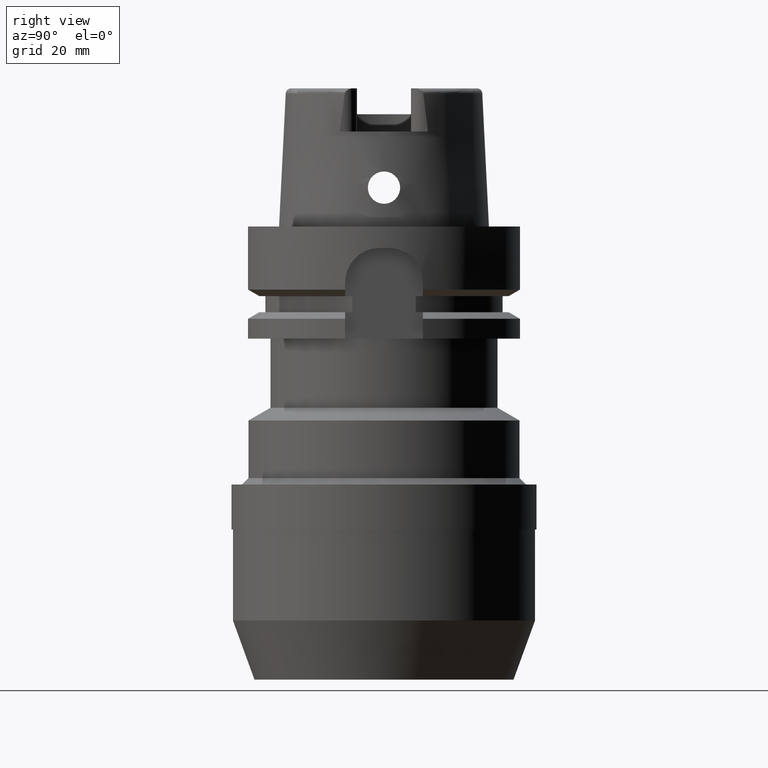
[diagram: clean part render]
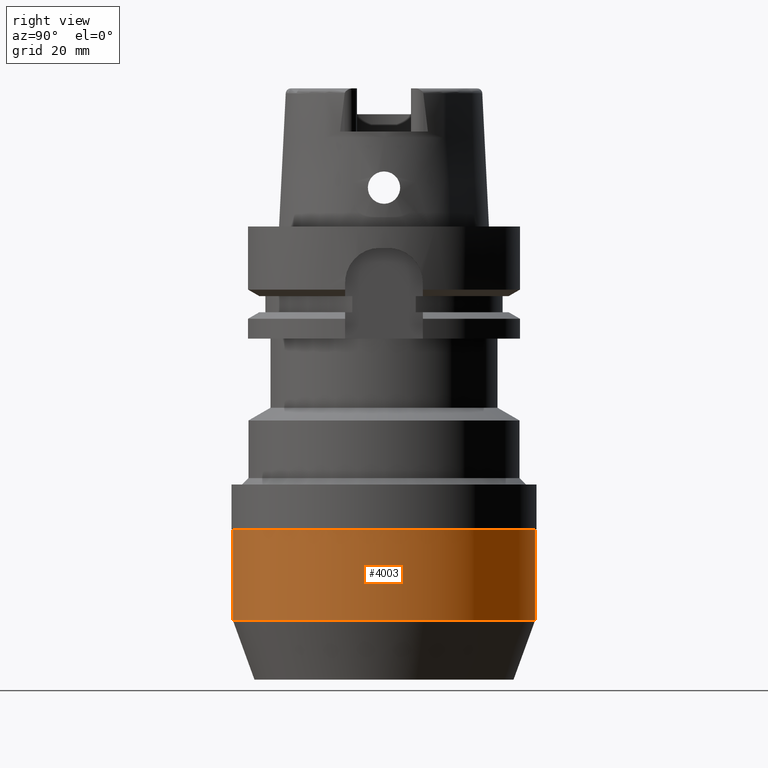
[diagram: same view with one face highlighted and labeled with its STEP entity id]
A machine part, right view. The second image highlights one B-rep face of the part: STEP entity #4003.
In plain terms, the highlighted cylindrical surface (partial cylindrical patch) has radius 35 mm, axis along (0, 0, -1).
Its self-contained STEP definition (entity closure, byte-faithful):
#1810=CARTESIAN_POINT('',(0.E0,0.E0,-7.02E1));
#1811=DIRECTION('',(0.E0,0.E0,-1.E0));
#1812=DIRECTION('',(0.E0,1.E0,0.E0));
#1813=AXIS2_PLACEMENT_3D('',#1810,#1811,#1812);
#1818=DIRECTION('',(0.E0,-7.408502458162E-14,-1.E0));
#1819=VECTOR('',#1818,2.11E1);
#1820=CARTESIAN_POINT('',(0.E0,-3.5E1,-7.02E1));
#1821=LINE('',#1820,#1819);
#1825=DIRECTION('',(0.E0,7.341152435815E-14,-1.E0));
#1826=VECTOR('',#1825,2.11E1);
#1827=CARTESIAN_POINT('',(0.E0,3.5E1,-7.02E1));
#1828=LINE('',#1827,#1826);
#1839=CARTESIAN_POINT('',(0.E0,-1.201990833363E-14,-9.13E1));
#1840=DIRECTION('',(0.E0,0.E0,1.E0));
#1841=DIRECTION('',(0.E0,-1.E0,0.E0));
#1842=AXIS2_PLACEMENT_3D('',#1839,#1840,#1841);
#2548=CARTESIAN_POINT('',(0.E0,3.5E1,-9.13E1));
#2549=VERTEX_POINT('',#2548);
#2550=CARTESIAN_POINT('',(0.E0,-3.5E1,-9.13E1));
#2551=VERTEX_POINT('',#2550);
#2552=CARTESIAN_POINT('',(0.E0,3.5E1,-7.02E1));
#2553=VERTEX_POINT('',#2552);
#2554=CARTESIAN_POINT('',(0.E0,-3.5E1,-7.02E1));
#2555=VERTEX_POINT('',#2554);
#3991=CARTESIAN_POINT('',(0.E0,0.E0,3.885E1));
#3992=DIRECTION('',(0.E0,0.E0,-1.E0));
#3993=DIRECTION('',(0.E0,-1.E0,0.E0));
#3994=AXIS2_PLACEMENT_3D('',#3991,#3992,#3993);
#3995=CYLINDRICAL_SURFACE('',#3994,3.5E1);
#3996=ORIENTED_EDGE('',*,*,#3981,.T.);
#3998=ORIENTED_EDGE('',*,*,#3997,.F.);
#3999=ORIENTED_EDGE('',*,*,#3984,.F.);
#4000=ORIENTED_EDGE('',*,*,#3971,.F.);
#4001=EDGE_LOOP('',(#3996,#3998,#3999,#4000));
#4002=FACE_OUTER_BOUND('',#4001,.F.);
#1814=CIRCLE('',#1813,3.5E1);
#1843=CIRCLE('',#1842,3.5E1);
#3971=EDGE_CURVE('',#2553,#2555,#1814,.T.);
#3981=EDGE_CURVE('',#2553,#2549,#1828,.T.);
#3984=EDGE_CURVE('',#2555,#2551,#1821,.T.);
#3997=EDGE_CURVE('',#2551,#2549,#1843,.T.);
#4003=ADVANCED_FACE('',(#4002),#3995,.T.);